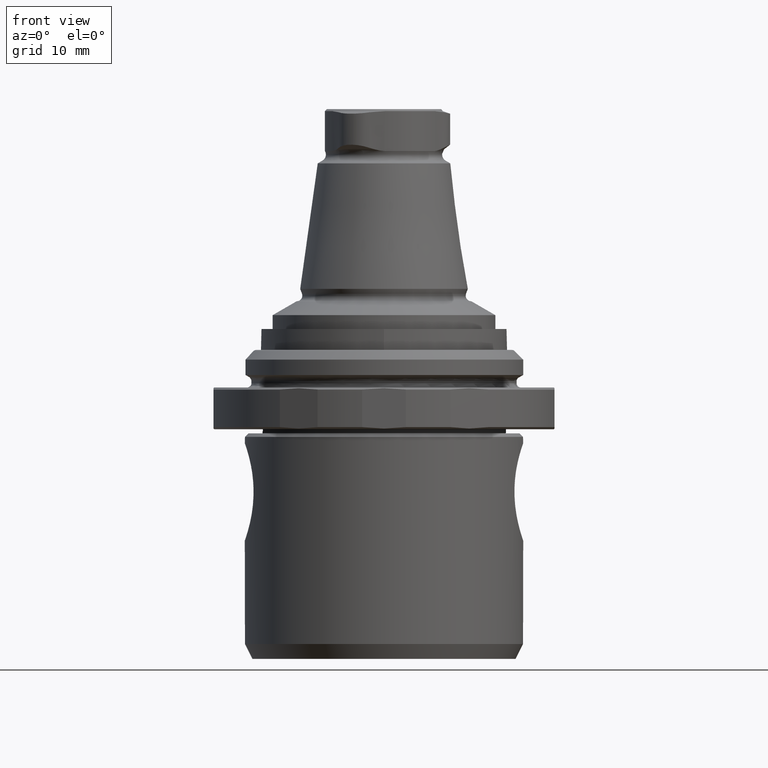
[diagram: clean part render]
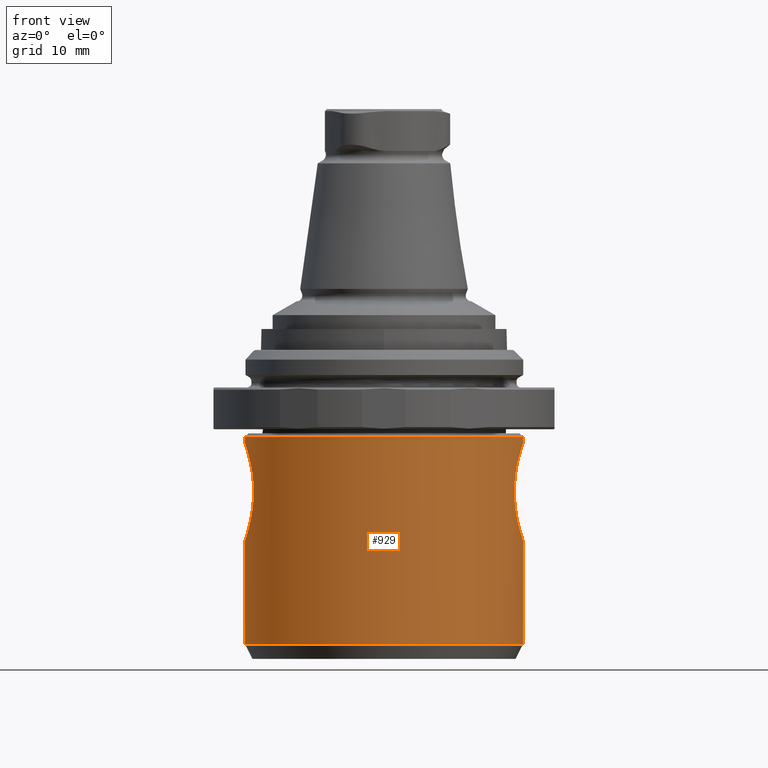
[diagram: same view with one face highlighted and labeled with its STEP entity id]
A machine part, front view. The second image highlights one B-rep face of the part: STEP entity #929.
In plain terms, the highlighted cylindrical surface (bore or boss wall) has radius 20 mm, axis along (0, 0, -1).
Its self-contained STEP definition (entity closure, byte-faithful):
#81=B_SPLINE_CURVE_WITH_KNOTS('',3,(#1430,#1431,#1432,#1433,#1434,#1435,
#1436,#1437,#1438,#1439,#1440,#1441,#1442,#1443,#1444,#1445,#1446,#1447,
#1448),.UNSPECIFIED.,.T.,.F.,(1,1,1,1,1,1,1,1,1,1,1,1,1,1,1,1,1,1,1,1,1,
1,1),(-0.00827466381188694,-0.00551644254125796,-0.00275822127062898,4.0357227640684E-18,
0.00275822127062898,0.00551644254125797,0.00827466381188695,0.0110328850825159,
0.0137911063531449,0.0165493276237739,0.0193075488944029,0.0220657701650319,
0.0248239914356608,0.0275822127062898,0.0303404339769188,0.0330986552475478,
0.0358568765181767,0.0386150977888057,0.0413733190594347,0.0441315403300637,
0.0468897616006927,0.0496479828713217,0.0524062041419506),.UNSPECIFIED.);
#82=B_SPLINE_CURVE_WITH_KNOTS('',3,(#1450,#1451,#1452,#1453,#1454,#1455,
#1456,#1457,#1458,#1459,#1460,#1461,#1462,#1463,#1464,#1465,#1466,#1467,
#1468),.UNSPECIFIED.,.T.,.F.,(1,1,1,1,1,1,1,1,1,1,1,1,1,1,1,1,1,1,1,1,1,
1,1),(-0.00827199457178188,-0.00551466304785459,-0.0027573315239273,7.08738854198737E-19,
0.0027573315239273,0.00551466304785459,0.00827199457178189,0.0110293260957092,
0.0137866576196365,0.0165439891435638,0.0193013206674911,0.0220586521914184,
0.0248159837153457,0.027573315239273,0.0303306467632003,0.0330879782871276,
0.0358453098110549,0.0386026413349821,0.0413599728589094,0.0441173043828367,
0.046874635906764,0.0496319674306913,0.0523892989546186),.UNSPECIFIED.);
#123=CYLINDRICAL_SURFACE('',#1014,20.);
#173=ORIENTED_EDGE('',*,*,#428,.F.);
#174=ORIENTED_EDGE('',*,*,#429,.F.);
#175=ORIENTED_EDGE('',*,*,#430,.T.);
#176=ORIENTED_EDGE('',*,*,#427,.F.);
#427=EDGE_CURVE('',#555,#555,#649,.T.);
#428=EDGE_CURVE('',#556,#556,#81,.T.);
#429=EDGE_CURVE('',#557,#557,#82,.T.);
#430=EDGE_CURVE('',#558,#558,#650,.T.);
#555=VERTEX_POINT('',#1428);
#556=VERTEX_POINT('',#1449);
#557=VERTEX_POINT('',#1469);
#558=VERTEX_POINT('',#1471);
#649=CIRCLE('',#1013,20.);
#650=CIRCLE('',#1015,20.);
#709=EDGE_LOOP('',(#173));
#710=EDGE_LOOP('',(#174));
#711=EDGE_LOOP('',(#175));
#712=EDGE_LOOP('',(#176));
#811=FACE_BOUND('',#709,.T.);
#812=FACE_BOUND('',#710,.T.);
#813=FACE_BOUND('',#711,.T.);
#814=FACE_BOUND('',#712,.T.);
#929=ADVANCED_FACE('',(#811,#812,#813,#814),#123,.T.);
#1013=AXIS2_PLACEMENT_3D('',#1427,#1146,#1147);
#1014=AXIS2_PLACEMENT_3D('',#1429,#1148,#1149);
#1015=AXIS2_PLACEMENT_3D('',#1470,#1150,#1151);
#1146=DIRECTION('',(1.22464605849178E-16,1.51929083932157E-64,-1.));
#1147=DIRECTION('',(6.16297582203915E-33,1.,7.54746404904039E-49));
#1148=DIRECTION('',(1.22464605849178E-16,1.51929083932157E-64,-1.));
#1149=DIRECTION('',(6.16297582203915E-33,1.,7.54746404904039E-49));
#1150=DIRECTION('',(1.22464605849178E-16,1.51929083932157E-64,-1.));
#1151=DIRECTION('',(6.16297582203915E-33,1.,7.54746404904039E-49));
#1427=CARTESIAN_POINT('',(5.85984263939649E-15,7.26969656266669E-63,-47.8492752968414));
#1428=CARTESIAN_POINT('',(5.85984263939649E-15,20.,-47.8492752968414));
#1429=CARTESIAN_POINT('',(7.34787635095068E-15,9.11574503592941E-63,-60.));
#1430=CARTESIAN_POINT('',(19.8646762557932,-2.77027417162864,-32.6190142457758));
#1431=CARTESIAN_POINT('',(20.067687523882,-0.000442284099642649,-33.187621400628));
#1432=CARTESIAN_POINT('',(19.8645736486787,2.77204330802721,-32.6187943163682));
#1433=CARTESIAN_POINT('',(19.3810291166969,5.07155984984813,-31.0523185286372));
#1434=CARTESIAN_POINT('',(18.8845725861042,6.61541575993611,-28.7458524597948));
#1435=CARTESIAN_POINT('',(18.6625231501187,7.18582964320088,-25.9865084937988));
#1436=CARTESIAN_POINT('',(18.8754846384485,6.6407682394913,-23.2102986378651));
#1437=CARTESIAN_POINT('',(19.3787521418715,5.08328236917155,-20.8978414785783));
#1438=CARTESIAN_POINT('',(19.8652500949956,2.76836429511372,-19.3575576252146));
#1439=CARTESIAN_POINT('',(20.0672619189514,0.00252766068244397,-18.8058516905385));
#1440=CARTESIAN_POINT('',(19.865701669246,-2.76688232386953,-19.3561296374729));
#1441=CARTESIAN_POINT('',(19.3781223751111,-5.08560578391087,-20.8999837827492));
#1442=CARTESIAN_POINT('',(18.8758801861453,-6.63949104038356,-23.2096582592154));
#1443=CARTESIAN_POINT('',(18.6624751881201,-7.18597032612477,-25.9805389378652));
#1444=CARTESIAN_POINT('',(18.8843276180982,-6.61624068030539,-28.7462378083117));
#1445=CARTESIAN_POINT('',(19.3818414543829,-5.06875163541889,-31.0552341342419));
#1446=CARTESIAN_POINT('',(19.8646762557932,-2.77027417162864,-32.6190142457758));
#1447=CARTESIAN_POINT('',(20.067687523882,-0.000442284099642649,-33.187621400628));
#1448=CARTESIAN_POINT('',(19.8645736486787,2.77204330802721,-32.6187943163682));
#1449=CARTESIAN_POINT('',(20.,3.01277948821576E-15,-32.9980490274426));
#1450=CARTESIAN_POINT('',(-19.8649591933729,2.7695832460966,-32.6205258047645));
#1451=CARTESIAN_POINT('',(-20.0675530394527,0.000455299376663008,-33.1804880811146));
#1452=CARTESIAN_POINT('',(-19.8648286488162,-2.77140444360324,-32.6202151748823));
#1453=CARTESIAN_POINT('',(-19.3795925254785,-5.07818285233166,-31.0666159378119));
#1454=CARTESIAN_POINT('',(-18.8807534308337,-6.62602104875968,-28.7628225067889));
#1455=CARTESIAN_POINT('',(-18.6623765403536,-7.18620834303158,-26.0004462827957));
#1456=CARTESIAN_POINT('',(-18.8797083173973,-6.62913503807039,-23.2278421368485));
#1457=CARTESIAN_POINT('',(-19.3807301173563,-5.07463924481911,-20.9166229890336));
#1458=CARTESIAN_POINT('',(-19.8651189238931,-2.76760798580901,-19.366689936104));
#1459=CARTESIAN_POINT('',(-20.0672811595735,-0.00335678219339306,-18.8078226692392));
#1460=CARTESIAN_POINT('',(-19.8657553843,2.76513407296647,-19.364715701082));
#1461=CARTESIAN_POINT('',(-19.3801228451576,5.07696742894387,-20.9185749273258));
#1462=CARTESIAN_POINT('',(-18.8800361574797,6.62803079603399,-23.2277430777567));
#1463=CARTESIAN_POINT('',(-18.6624071808983,7.18614536274943,-25.9937199601332));
#1464=CARTESIAN_POINT('',(-18.8802991046361,6.62738771405925,-28.7618782451659));
#1465=CARTESIAN_POINT('',(-19.3802025510408,5.07622574285911,-31.0688461388625));
#1466=CARTESIAN_POINT('',(-19.8649591933729,2.7695832460966,-32.6205258047645));
#1467=CARTESIAN_POINT('',(-20.0675530394527,0.000455299376663008,-33.1804880811146));
#1468=CARTESIAN_POINT('',(-19.8648286488162,-2.77140444360324,-32.6202151748823));
#1469=CARTESIAN_POINT('',(-20.,-7.30116068078512E-16,-32.9937822173509));
#1470=CARTESIAN_POINT('',(2.21584790756874E-15,2.74897175715007E-63,-18.0937822173509));
#1471=CARTESIAN_POINT('',(2.21584790756874E-15,20.,-18.0937822173509));